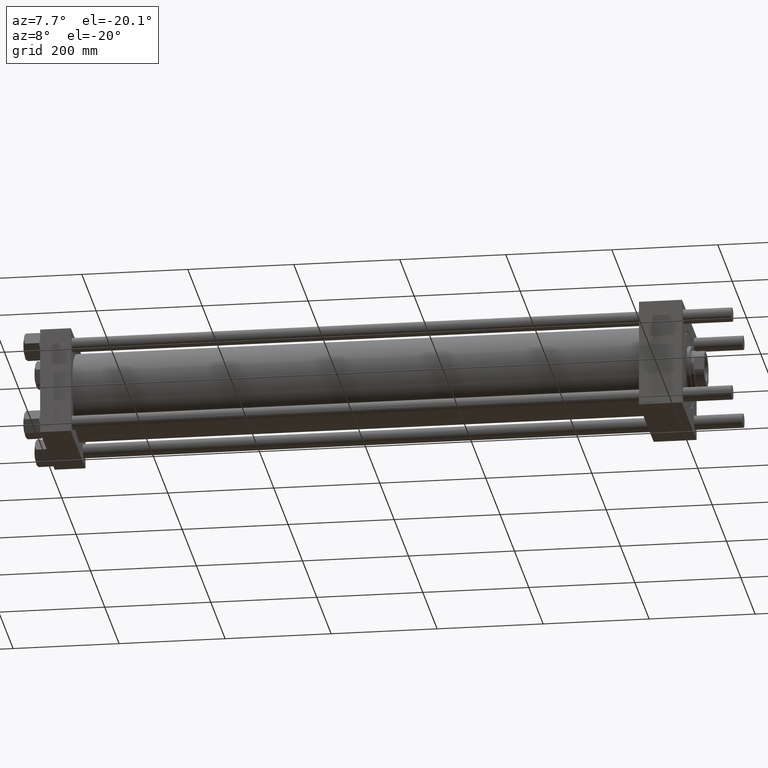
[diagram: clean part render]
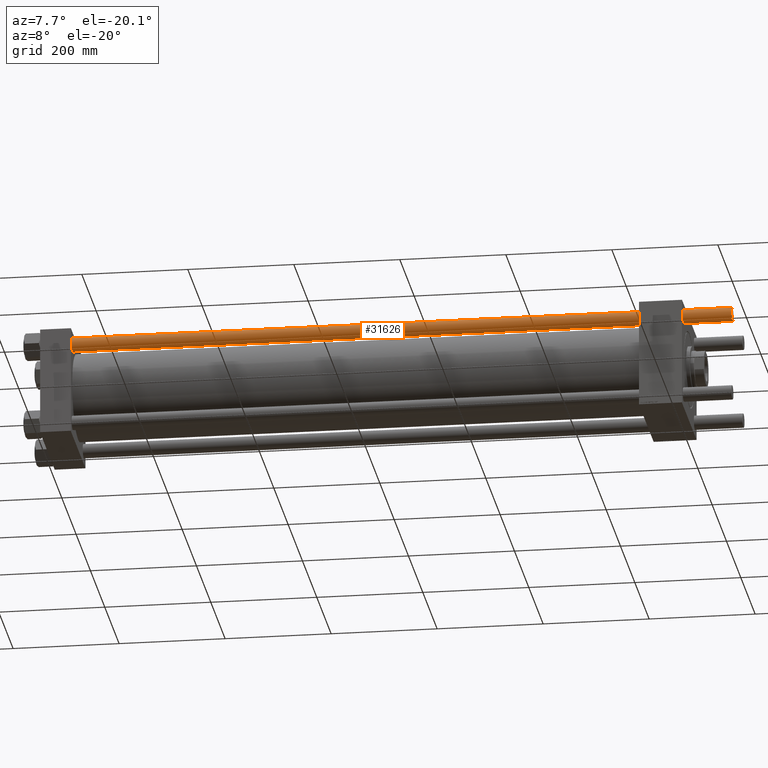
[diagram: same view with one face highlighted and labeled with its STEP entity id]
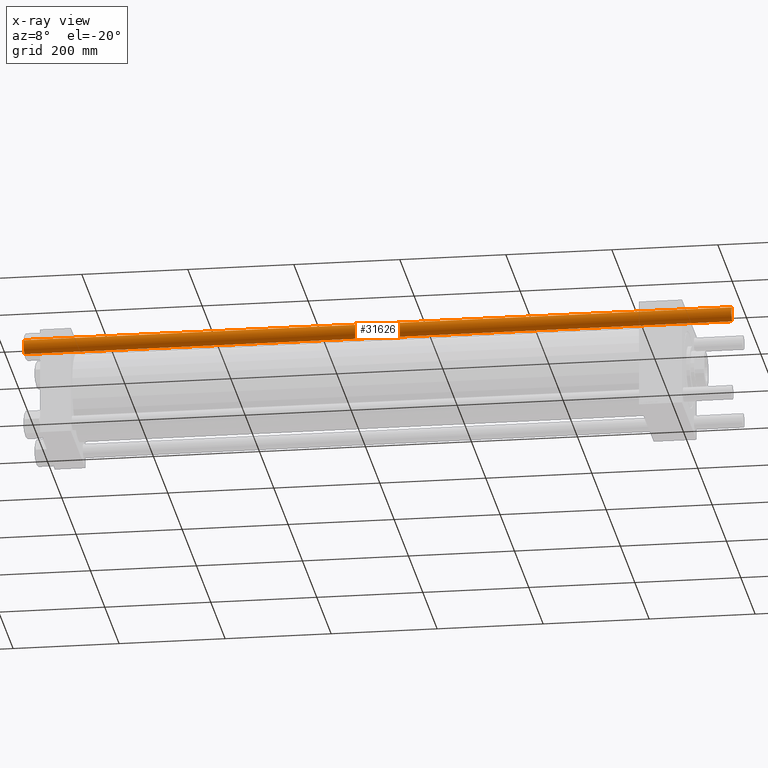
[diagram: x-ray of the same camera — body ghosted, the highlighted face saturated]
A machine part, auxiliary view. The second image highlights one B-rep face of the part: STEP entity #31626.
The next image is the same camera in x-ray: the body ghosted, the highlighted face saturated — about 0% of this face is hidden behind the body in this view.
In plain terms, the highlighted cylindrical surface (edge-blend (fillet) strip) has radius 13.5 mm, axis along (-1, 0, -0).
Its self-contained STEP definition (entity closure, byte-faithful):
#303 = EDGE_CURVE ( 'NONE', #15614, #32906, #9101, .T. ) ;
#1358 = AXIS2_PLACEMENT_3D ( 'NONE', #42779, #21359, #33248 ) ;
#2858 = CYLINDRICAL_SURFACE ( 'NONE', #1358, 13.50000000000000000 ) ;
#4064 = CARTESIAN_POINT ( 'NONE',  ( -13.50000000000000000, 0.000000000000000000, 1336.000000000000000 ) ) ;
#5546 = VERTEX_POINT ( 'NONE', #20474 ) ;
#6474 = ORIENTED_EDGE ( 'NONE', *, *, #19497, .T. ) ;
#7286 = VECTOR ( 'NONE', #21433, 1000.000000000000000 ) ;
#8155 = CIRCLE ( 'NONE', #50655, 13.50000000000000000 ) ;
#8686 = DIRECTION ( 'NONE',  ( 1.000000000000000000, 0.000000000000000000, 0.000000000000000000 ) ) ;
#9101 = LINE ( 'NONE', #48734, #31783 ) ;
#9822 = CARTESIAN_POINT ( 'NONE',  ( 0.000000000000000000, 0.000000000000000000, 0.5000000000010551560 ) ) ;
#15582 = FACE_OUTER_BOUND ( 'NONE', #52245, .T. ) ;
#15614 = VERTEX_POINT ( 'NONE', #47224 ) ;
#17637 = DIRECTION ( 'NONE',  ( -0.000000000000000000, -0.000000000000000000, 1.000000000000000000 ) ) ;
#17977 = VERTEX_POINT ( 'NONE', #31371 ) ;
#19497 = EDGE_CURVE ( 'NONE', #32906, #17977, #8155, .T. ) ;
#19518 = CARTESIAN_POINT ( 'NONE',  ( 0.000000000000000000, 0.000000000000000000, 1335.500000000000909 ) ) ;
#20474 = CARTESIAN_POINT ( 'NONE',  ( -13.50000000000000000, 0.000000000000000000, 1335.500000000000909 ) ) ;
#20519 = EDGE_CURVE ( 'NONE', #5546, #17977, #51848, .T. ) ;
#21359 = DIRECTION ( 'NONE',  ( -0.000000000000000000, -0.000000000000000000, -1.000000000000000000 ) ) ;
#21433 = DIRECTION ( 'NONE',  ( -0.000000000000000000, -0.000000000000000000, -1.000000000000000000 ) ) ;
#31371 = CARTESIAN_POINT ( 'NONE',  ( -13.50000000000000000, 0.000000000000000000, 0.5000000000010551560 ) ) ;
#31626 = ADVANCED_FACE ( 'NONE', ( #15582 ), #2858, .T. ) ;
#31783 = VECTOR ( 'NONE', #49028, 1000.000000000000000 ) ;
#32837 = DIRECTION ( 'NONE',  ( 0.000000000000000000, 0.000000000000000000, -1.000000000000000000 ) ) ;
#32906 = VERTEX_POINT ( 'NONE', #46819 ) ;
#33248 = DIRECTION ( 'NONE',  ( -1.000000000000000000, 0.000000000000000000, 0.000000000000000000 ) ) ;
#35711 = CIRCLE ( 'NONE', #42216, 13.50000000000000000 ) ;
#38611 = ORIENTED_EDGE ( 'NONE', *, *, #303, .T. ) ;
#42216 = AXIS2_PLACEMENT_3D ( 'NONE', #19518, #32837, #50488 ) ;
#42578 = EDGE_CURVE ( 'NONE', #5546, #15614, #35711, .T. ) ;
#42779 = CARTESIAN_POINT ( 'NONE',  ( 0.000000000000000000, 0.000000000000000000, 1336.000000000000000 ) ) ;
#46819 = CARTESIAN_POINT ( 'NONE',  ( 13.50000000000000000, 1.653273178848926472E-15, 0.5000000000010551560 ) ) ;
#47224 = CARTESIAN_POINT ( 'NONE',  ( 13.50000000000000000, 1.653273178848926472E-15, 1335.500000000000909 ) ) ;
#48734 = CARTESIAN_POINT ( 'NONE',  ( 13.50000000000000000, 1.653273178848926472E-15, 1336.000000000000000 ) ) ;
#49028 = DIRECTION ( 'NONE',  ( -0.000000000000000000, -0.000000000000000000, -1.000000000000000000 ) ) ;
#49376 = ORIENTED_EDGE ( 'NONE', *, *, #20519, .F. ) ;
#50488 = DIRECTION ( 'NONE',  ( 1.000000000000000000, 0.000000000000000000, 0.000000000000000000 ) ) ;
#50655 = AXIS2_PLACEMENT_3D ( 'NONE', #9822, #17637, #8686 ) ;
#51848 = LINE ( 'NONE', #4064, #7286 ) ;
#52245 = EDGE_LOOP ( 'NONE', ( #56297, #38611, #6474, #49376 ) ) ;
#56297 = ORIENTED_EDGE ( 'NONE', *, *, #42578, .T. ) ;